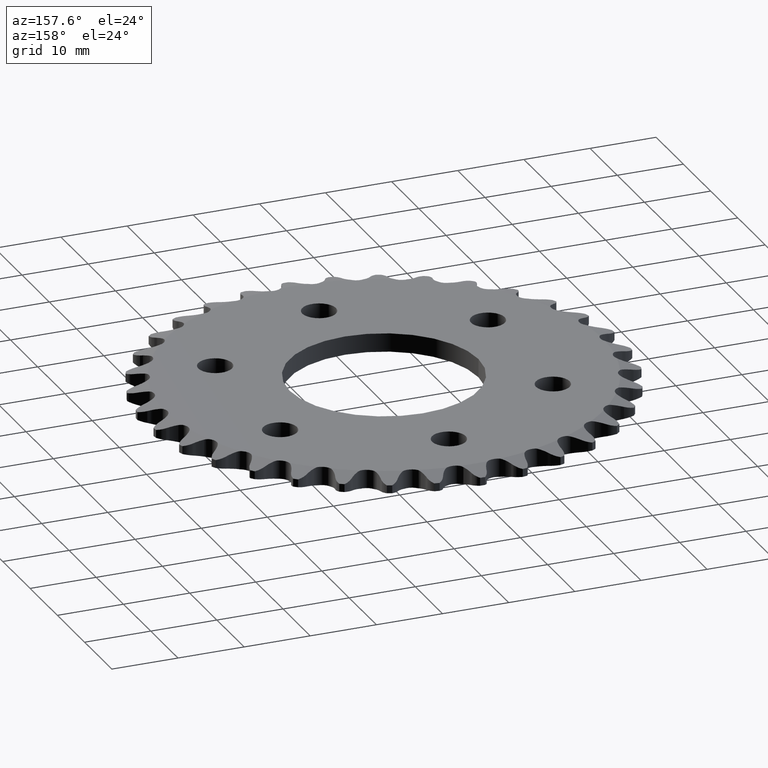
[diagram: clean part render]
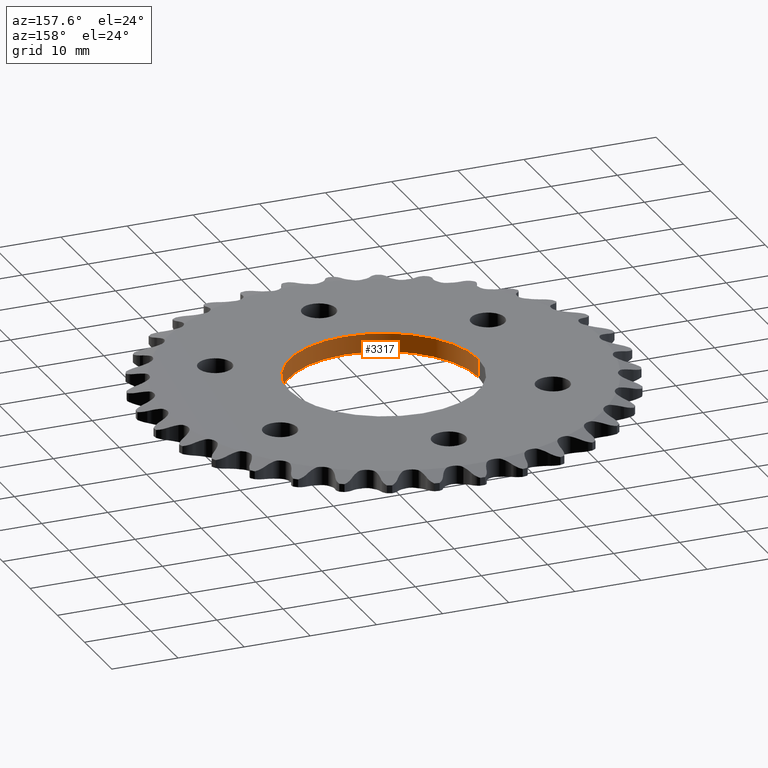
[diagram: same view with one face highlighted and labeled with its STEP entity id]
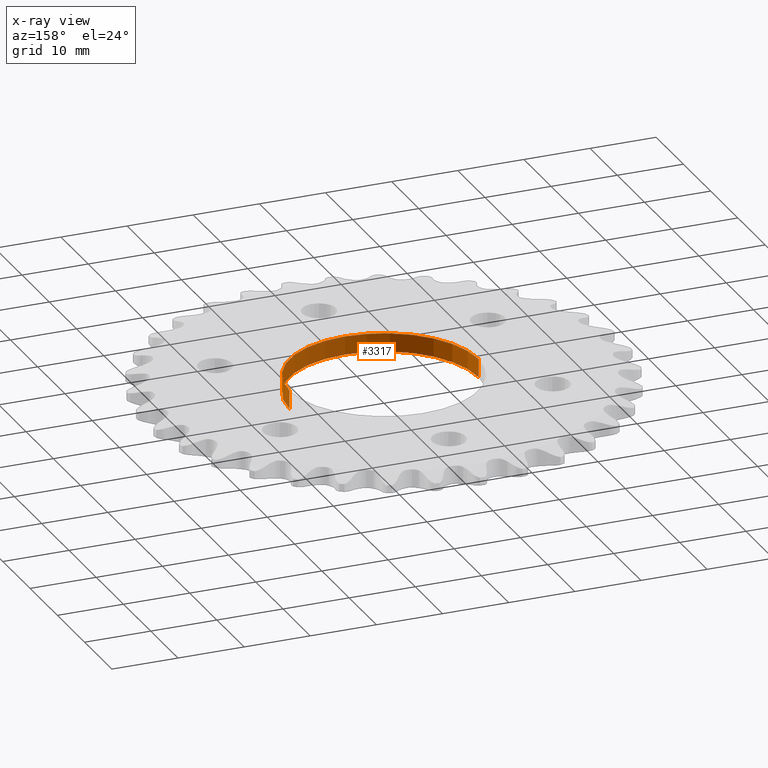
[diagram: x-ray of the same camera — body ghosted, the highlighted face saturated]
A machine part, auxiliary view. The second image highlights one B-rep face of the part: STEP entity #3317.
The next image is the same camera in x-ray: the body ghosted, the highlighted face saturated — about 0% of this face is hidden behind the body in this view.
In plain terms, the highlighted cylindrical surface (partial cylindrical patch) has radius 14.2875 mm, axis along (-0, -0, 1).
Its self-contained STEP definition (entity closure, byte-faithful):
#443 = CARTESIAN_POINT ( 'NONE',  ( 0.0000000000000000000, 0.0000000000000000000, -0.05500000000000000028 ) ) ;
#535 = DIRECTION ( 'NONE',  ( 0.0000000000000000000, 0.0000000000000000000, 1.000000000000000000 ) ) ;
#1274 = VERTEX_POINT ( 'NONE', #12420 ) ;
#1396 = AXIS2_PLACEMENT_3D ( 'NONE', #6649, #535, #11982 ) ;
#1855 = LINE ( 'NONE', #3909, #5589 ) ;
#2017 = DIRECTION ( 'NONE',  ( -0.0000000000000000000, -0.0000000000000000000, 1.000000000000000000 ) ) ;
#2131 = CARTESIAN_POINT ( 'NONE',  ( 0.5625000000000001110, 0.0000000000000000000, -0.05500000000000000028 ) ) ;
#2471 = AXIS2_PLACEMENT_3D ( 'NONE', #10392, #2017, #5011 ) ;
#2578 = DIRECTION ( 'NONE',  ( 1.000000000000000000, 0.0000000000000000000, 0.0000000000000000000 ) ) ;
#3203 = DIRECTION ( 'NONE',  ( -0.0000000000000000000, -0.0000000000000000000, 1.000000000000000000 ) ) ;
#3317 = ADVANCED_FACE ( 'NONE', ( #8733 ), #12834, .F. ) ;
#3421 = EDGE_LOOP ( 'NONE', ( #11436, #4411, #7909, #11987 ) ) ;
#3629 = CARTESIAN_POINT ( 'NONE',  ( 0.5625000000000001110, 0.0000000000000000000, -0.05500000000000000028 ) ) ;
#3909 = CARTESIAN_POINT ( 'NONE',  ( -0.5625000000000001110, 6.888638245203861944E-17, -0.05500000000000000028 ) ) ;
#4411 = ORIENTED_EDGE ( 'NONE', *, *, #9249, .T. ) ;
#4463 = CIRCLE ( 'NONE', #1396, 0.5625000000000001110 ) ;
#5011 = DIRECTION ( 'NONE',  ( 1.000000000000000000, 0.0000000000000000000, 0.0000000000000000000 ) ) ;
#5031 = EDGE_CURVE ( 'NONE', #5236, #9006, #5485, .T. ) ;
#5236 = VERTEX_POINT ( 'NONE', #13480 ) ;
#5485 = CIRCLE ( 'NONE', #12164, 0.5625000000000001110 ) ;
#5589 = VECTOR ( 'NONE', #10215, 39.37007874015748143 ) ;
#5617 = VECTOR ( 'NONE', #3203, 39.37007874015748143 ) ;
#6649 = CARTESIAN_POINT ( 'NONE',  ( 0.0000000000000000000, 0.0000000000000000000, 0.05500000000000000028 ) ) ;
#6809 = EDGE_CURVE ( 'NONE', #9006, #8774, #13265, .T. ) ;
#7909 = ORIENTED_EDGE ( 'NONE', *, *, #8033, .T. ) ;
#7954 = CARTESIAN_POINT ( 'NONE',  ( 0.5625000000000001110, 0.0000000000000000000, 0.05500000000000000028 ) ) ;
#8033 = EDGE_CURVE ( 'NONE', #1274, #8774, #4463, .T. ) ;
#8733 = FACE_OUTER_BOUND ( 'NONE', #3421, .T. ) ;
#8774 = VERTEX_POINT ( 'NONE', #7954 ) ;
#9006 = VERTEX_POINT ( 'NONE', #3629 ) ;
#9249 = EDGE_CURVE ( 'NONE', #5236, #1274, #1855, .T. ) ;
#10215 = DIRECTION ( 'NONE',  ( -0.0000000000000000000, -0.0000000000000000000, 1.000000000000000000 ) ) ;
#10392 = CARTESIAN_POINT ( 'NONE',  ( 0.0000000000000000000, 0.0000000000000000000, -0.05500000000000000028 ) ) ;
#10857 = DIRECTION ( 'NONE',  ( 0.0000000000000000000, 0.0000000000000000000, 1.000000000000000000 ) ) ;
#11436 = ORIENTED_EDGE ( 'NONE', *, *, #5031, .F. ) ;
#11982 = DIRECTION ( 'NONE',  ( 1.000000000000000000, 0.0000000000000000000, 0.0000000000000000000 ) ) ;
#11987 = ORIENTED_EDGE ( 'NONE', *, *, #6809, .F. ) ;
#12164 = AXIS2_PLACEMENT_3D ( 'NONE', #443, #10857, #2578 ) ;
#12420 = CARTESIAN_POINT ( 'NONE',  ( -0.5625000000000001110, 6.888638245203861944E-17, 0.05500000000000000028 ) ) ;
#12834 = CYLINDRICAL_SURFACE ( 'NONE', #2471, 0.5625000000000001110 ) ;
#13265 = LINE ( 'NONE', #2131, #5617 ) ;
#13480 = CARTESIAN_POINT ( 'NONE',  ( -0.5625000000000001110, 6.888638245203861944E-17, -0.05500000000000000028 ) ) ;